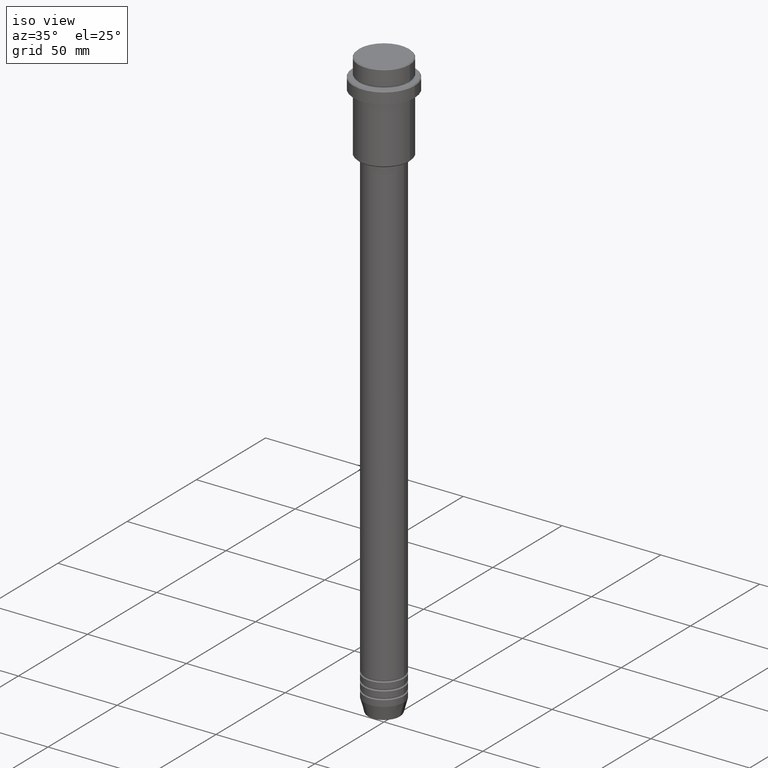
[diagram: clean part render]
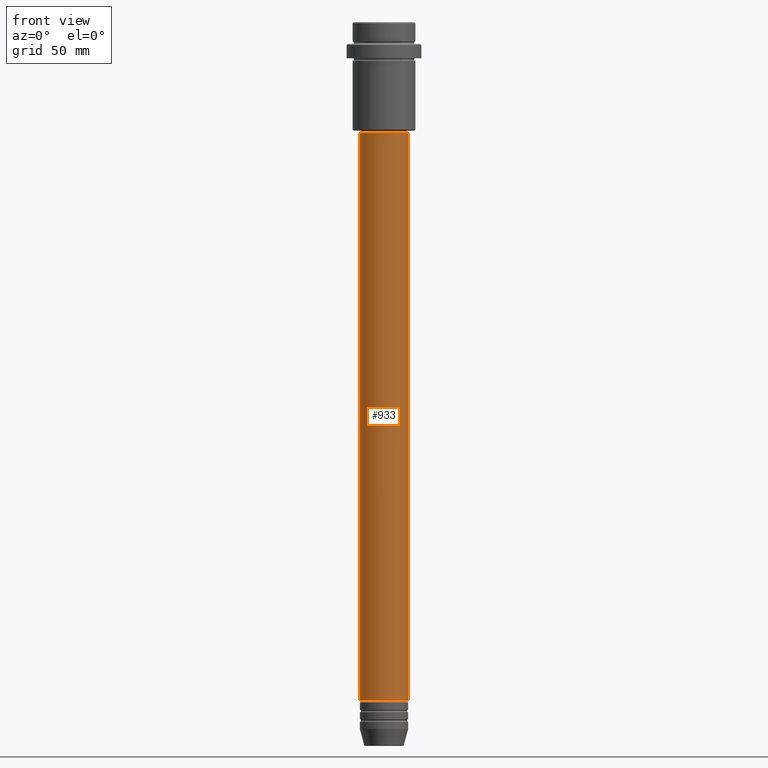
[diagram: tour spotlight — one face highlighted and labeled with its STEP entity id]
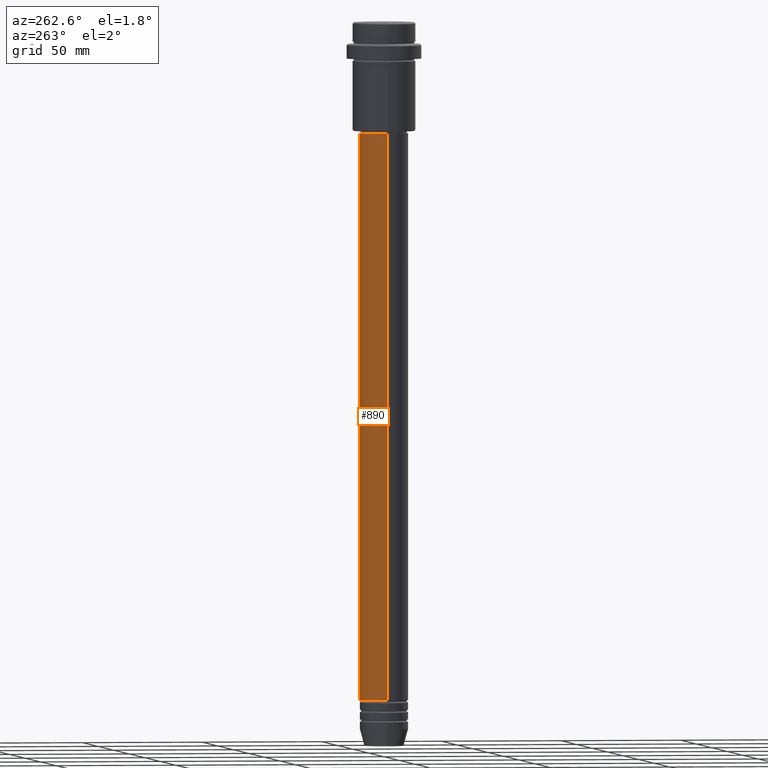
[diagram: tour spotlight — one face highlighted and labeled with its STEP entity id]
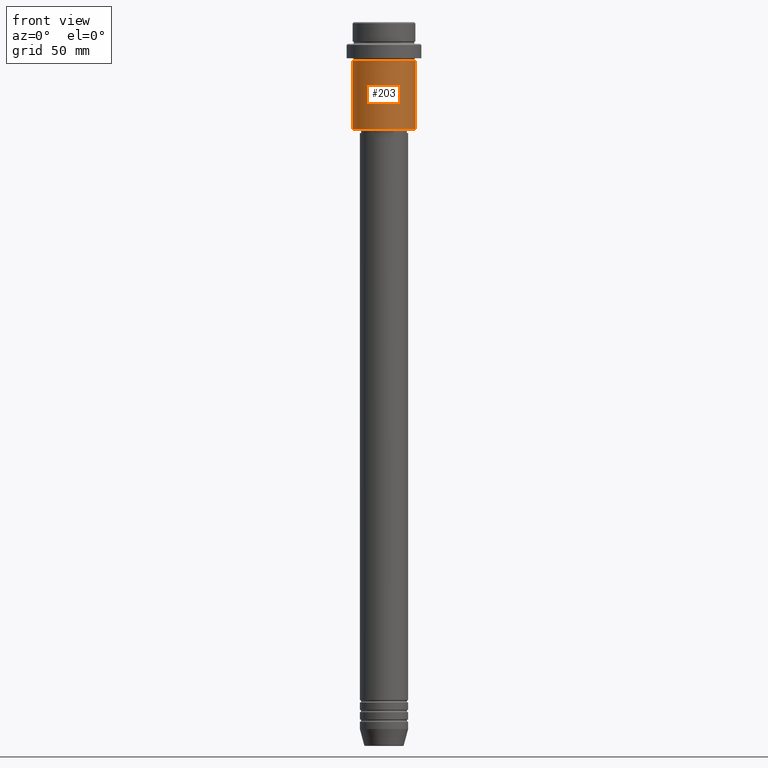
[diagram: tour spotlight — one face highlighted and labeled with its STEP entity id]
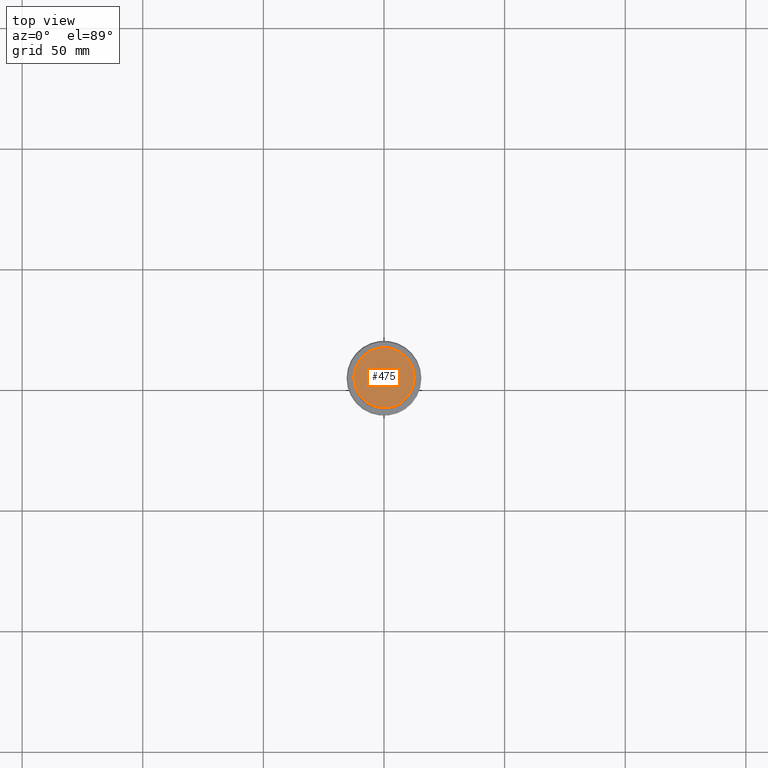
[diagram: tour spotlight — one face highlighted and labeled with its STEP entity id]
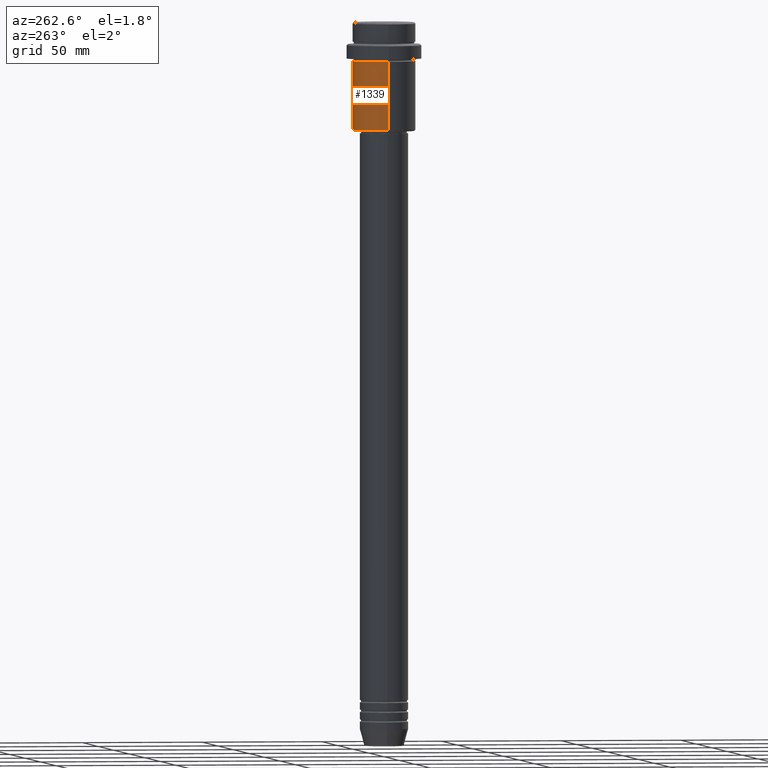
[diagram: tour spotlight — one face highlighted and labeled with its STEP entity id]
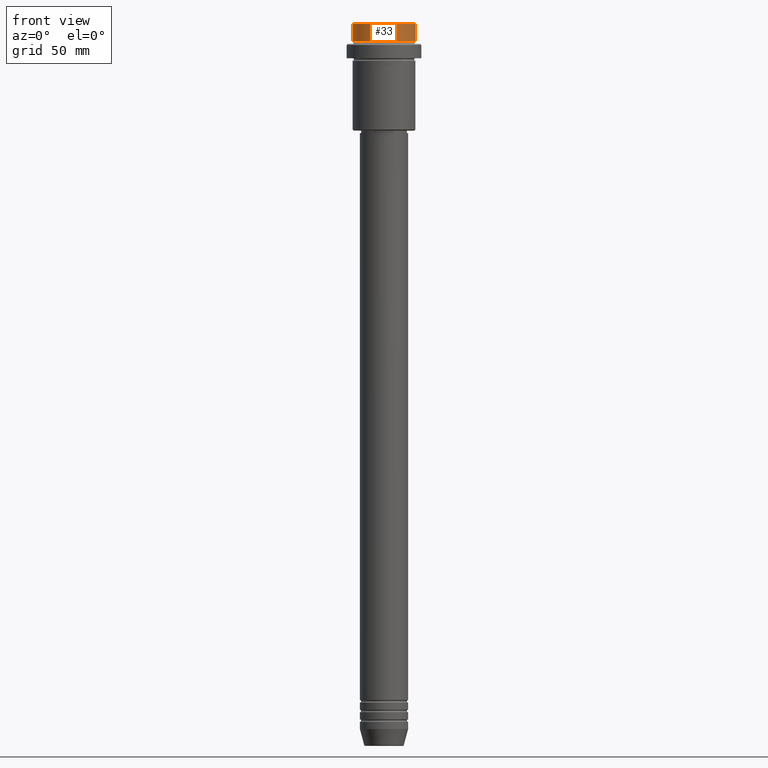
[diagram: tour spotlight — one face highlighted and labeled with its STEP entity id]
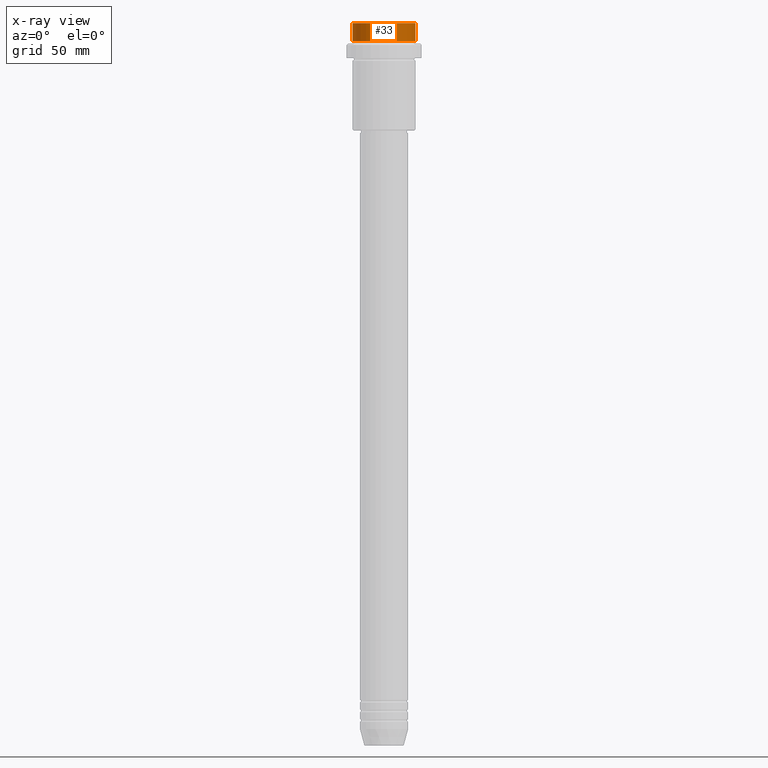
[diagram: x-ray of the same camera — body ghosted, this tour face saturated]
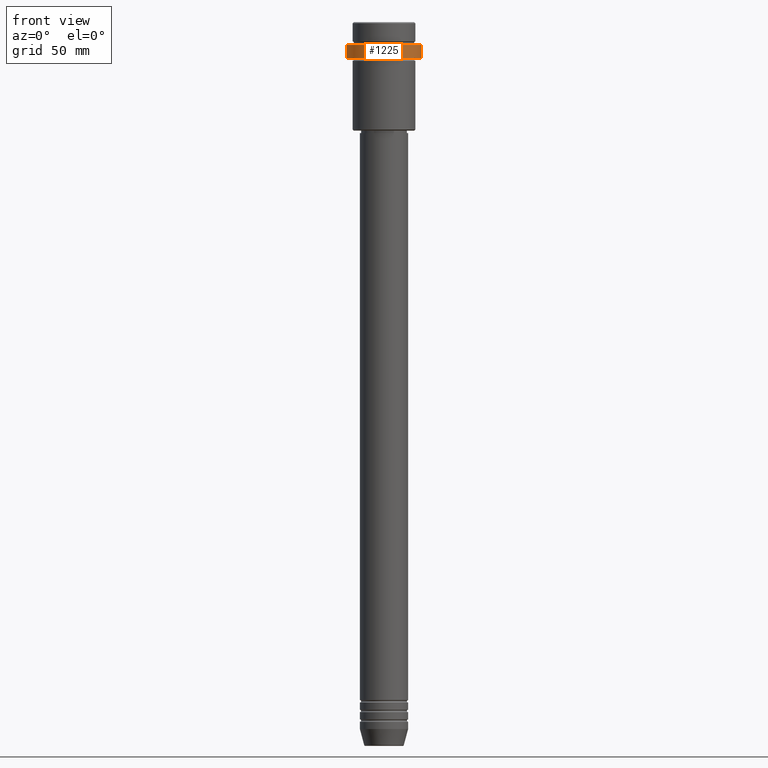
[diagram: tour spotlight — one face highlighted and labeled with its STEP entity id]
A machine part: a face-by-face anatomy tour. The part has 52 B-rep faces; the first image is the clean iso view, then the 7 largest visible faces are spotlighted one at a time (largest first), each with its STEP entity span.

Face 1 — front view, entity #933. In plain terms, the highlighted cylindrical surface (edge-blend (fillet) strip) has radius 10 mm, axis along (-0, -0, 1).
Definition (entity closure, byte-faithful):
#32 = CARTESIAN_POINT ( 'NONE',  ( 0.000000000000000000, 0.000000000000000000, -280.9999999999999432 ) ) ;
#36 = DIRECTION ( 'NONE',  ( -0.000000000000000000, -0.000000000000000000, 1.000000000000000000 ) ) ;
#116 = FACE_OUTER_BOUND ( 'NONE', #548, .T. ) ;
#200 = DIRECTION ( 'NONE',  ( 1.000000000000000000, 0.000000000000000000, 0.000000000000000000 ) ) ;
#348 = CYLINDRICAL_SURFACE ( 'NONE', #1113, 10.00000000000000178 ) ;
#489 = DIRECTION ( 'NONE',  ( 1.000000000000000000, 0.000000000000000000, 0.000000000000000000 ) ) ;
#494 = VECTOR ( 'NONE', #550, 1000.000000000000000 ) ;
#525 = CARTESIAN_POINT ( 'NONE',  ( -10.00000000000000000, 1.224646799147353256E-15, -280.9999999999999432 ) ) ;
#548 = EDGE_LOOP ( 'NONE', ( #722, #1188, #1140, #579 ) ) ;
#550 = DIRECTION ( 'NONE',  ( -0.000000000000000000, -0.000000000000000000, 1.000000000000000000 ) ) ;
#563 = CARTESIAN_POINT ( 'NONE',  ( -10.00000000000000178, 1.224646799147353454E-15, 0.000000000000000000 ) ) ;
#579 = ORIENTED_EDGE ( 'NONE', *, *, #670, .F. ) ;
#611 = VERTEX_POINT ( 'NONE', #525 ) ;
#670 = EDGE_CURVE ( 'NONE', #1387, #712, #1240, .T. ) ;
#712 = VERTEX_POINT ( 'NONE', #899 ) ;
#722 = ORIENTED_EDGE ( 'NONE', *, *, #1375, .F. ) ;
#757 = DIRECTION ( 'NONE',  ( -0.000000000000000000, -0.000000000000000000, 1.000000000000000000 ) ) ;
#763 = AXIS2_PLACEMENT_3D ( 'NONE', #802, #36, #489 ) ;
#802 = CARTESIAN_POINT ( 'NONE',  ( 0.000000000000000000, 0.000000000000000000, -46.00000000000009948 ) ) ;
#856 = CIRCLE ( 'NONE', #880, 10.00000000000000000 ) ;
#861 = CARTESIAN_POINT ( 'NONE',  ( -10.00000000000000178, 1.224646799147353454E-15, -46.00000000000009948 ) ) ;
#868 = CARTESIAN_POINT ( 'NONE',  ( 10.00000000000000000, 0.000000000000000000, -280.9999999999999432 ) ) ;
#880 = AXIS2_PLACEMENT_3D ( 'NONE', #32, #937, #200 ) ;
#899 = CARTESIAN_POINT ( 'NONE',  ( 10.00000000000000178, 0.000000000000000000, -46.00000000000009948 ) ) ;
#933 = ADVANCED_FACE ( 'NONE', ( #116 ), #348, .T. ) ;
#937 = DIRECTION ( 'NONE',  ( -0.000000000000000000, -0.000000000000000000, 1.000000000000000000 ) ) ;
#997 = CARTESIAN_POINT ( 'NONE',  ( 0.000000000000000000, 0.000000000000000000, 0.000000000000000000 ) ) ;
#1046 = EDGE_CURVE ( 'NONE', #1392, #712, #1117, .T. ) ;
#1113 = AXIS2_PLACEMENT_3D ( 'NONE', #997, #757, #1193 ) ;
#1117 = LINE ( 'NONE', #1343, #1243 ) ;
#1140 = ORIENTED_EDGE ( 'NONE', *, *, #1046, .T. ) ;
#1188 = ORIENTED_EDGE ( 'NONE', *, *, #1197, .T. ) ;
#1192 = LINE ( 'NONE', #563, #494 ) ;
#1193 = DIRECTION ( 'NONE',  ( 1.000000000000000000, 0.000000000000000000, 0.000000000000000000 ) ) ;
#1197 = EDGE_CURVE ( 'NONE', #611, #1392, #856, .T. ) ;
#1240 = CIRCLE ( 'NONE', #763, 10.00000000000000178 ) ;
#1243 = VECTOR ( 'NONE', #1327, 1000.000000000000000 ) ;
#1327 = DIRECTION ( 'NONE',  ( -0.000000000000000000, -0.000000000000000000, 1.000000000000000000 ) ) ;
#1343 = CARTESIAN_POINT ( 'NONE',  ( 10.00000000000000178, 0.000000000000000000, 0.000000000000000000 ) ) ;
#1375 = EDGE_CURVE ( 'NONE', #611, #1387, #1192, .T. ) ;
#1387 = VERTEX_POINT ( 'NONE', #861 ) ;
#1392 = VERTEX_POINT ( 'NONE', #868 ) ;

Face 2 — auxiliary view, entity #890. In plain terms, the highlighted cylindrical surface (edge-blend (fillet) strip) has radius 10 mm, axis along (-0, -0, 1).
Definition (entity closure, byte-faithful):
#2 = EDGE_LOOP ( 'NONE', ( #812, #501, #1050, #841 ) ) ;
#55 = AXIS2_PLACEMENT_3D ( 'NONE', #1161, #172, #1048 ) ;
#172 = DIRECTION ( 'NONE',  ( -0.000000000000000000, -0.000000000000000000, 1.000000000000000000 ) ) ;
#322 = CIRCLE ( 'NONE', #1409, 10.00000000000000178 ) ;
#494 = VECTOR ( 'NONE', #550, 1000.000000000000000 ) ;
#501 = ORIENTED_EDGE ( 'NONE', *, *, #1375, .T. ) ;
#502 = CARTESIAN_POINT ( 'NONE',  ( 0.000000000000000000, 0.000000000000000000, -46.00000000000009948 ) ) ;
#525 = CARTESIAN_POINT ( 'NONE',  ( -10.00000000000000000, 1.224646799147353256E-15, -280.9999999999999432 ) ) ;
#550 = DIRECTION ( 'NONE',  ( -0.000000000000000000, -0.000000000000000000, 1.000000000000000000 ) ) ;
#563 = CARTESIAN_POINT ( 'NONE',  ( -10.00000000000000178, 1.224646799147353454E-15, 0.000000000000000000 ) ) ;
#611 = VERTEX_POINT ( 'NONE', #525 ) ;
#690 = EDGE_CURVE ( 'NONE', #1392, #611, #1239, .T. ) ;
#712 = VERTEX_POINT ( 'NONE', #899 ) ;
#725 = DIRECTION ( 'NONE',  ( 1.000000000000000000, 0.000000000000000000, 0.000000000000000000 ) ) ;
#744 = AXIS2_PLACEMENT_3D ( 'NONE', #1145, #1360, #1250 ) ;
#812 = ORIENTED_EDGE ( 'NONE', *, *, #690, .T. ) ;
#841 = ORIENTED_EDGE ( 'NONE', *, *, #1046, .F. ) ;
#861 = CARTESIAN_POINT ( 'NONE',  ( -10.00000000000000178, 1.224646799147353454E-15, -46.00000000000009948 ) ) ;
#868 = CARTESIAN_POINT ( 'NONE',  ( 10.00000000000000000, 0.000000000000000000, -280.9999999999999432 ) ) ;
#890 = ADVANCED_FACE ( 'NONE', ( #934 ), #1367, .T. ) ;
#899 = CARTESIAN_POINT ( 'NONE',  ( 10.00000000000000178, 0.000000000000000000, -46.00000000000009948 ) ) ;
#934 = FACE_OUTER_BOUND ( 'NONE', #2, .T. ) ;
#1046 = EDGE_CURVE ( 'NONE', #1392, #712, #1117, .T. ) ;
#1048 = DIRECTION ( 'NONE',  ( 1.000000000000000000, 0.000000000000000000, 0.000000000000000000 ) ) ;
#1050 = ORIENTED_EDGE ( 'NONE', *, *, #1233, .F. ) ;
#1117 = LINE ( 'NONE', #1343, #1243 ) ;
#1145 = CARTESIAN_POINT ( 'NONE',  ( 0.000000000000000000, 0.000000000000000000, -280.9999999999999432 ) ) ;
#1161 = CARTESIAN_POINT ( 'NONE',  ( 0.000000000000000000, 0.000000000000000000, 0.000000000000000000 ) ) ;
#1192 = LINE ( 'NONE', #563, #494 ) ;
#1233 = EDGE_CURVE ( 'NONE', #712, #1387, #322, .T. ) ;
#1239 = CIRCLE ( 'NONE', #744, 10.00000000000000000 ) ;
#1243 = VECTOR ( 'NONE', #1327, 1000.000000000000000 ) ;
#1250 = DIRECTION ( 'NONE',  ( 1.000000000000000000, 0.000000000000000000, 0.000000000000000000 ) ) ;
#1264 = DIRECTION ( 'NONE',  ( -0.000000000000000000, -0.000000000000000000, 1.000000000000000000 ) ) ;
#1327 = DIRECTION ( 'NONE',  ( -0.000000000000000000, -0.000000000000000000, 1.000000000000000000 ) ) ;
#1343 = CARTESIAN_POINT ( 'NONE',  ( 10.00000000000000178, 0.000000000000000000, 0.000000000000000000 ) ) ;
#1360 = DIRECTION ( 'NONE',  ( -0.000000000000000000, -0.000000000000000000, 1.000000000000000000 ) ) ;
#1367 = CYLINDRICAL_SURFACE ( 'NONE', #55, 10.00000000000000178 ) ;
#1375 = EDGE_CURVE ( 'NONE', #611, #1387, #1192, .T. ) ;
#1387 = VERTEX_POINT ( 'NONE', #861 ) ;
#1392 = VERTEX_POINT ( 'NONE', #868 ) ;
#1409 = AXIS2_PLACEMENT_3D ( 'NONE', #502, #1264, #725 ) ;

Face 3 — front view, entity #203. In plain terms, the highlighted cylindrical surface (edge-blend (fillet) strip) has radius 13 mm, axis along (-0, -0, 1).
Definition (entity closure, byte-faithful):
#5 = CIRCLE ( 'NONE', #740, 13.00000000000000000 ) ;
#6 = DIRECTION ( 'NONE',  ( -0.000000000000000000, -0.000000000000000000, 1.000000000000000000 ) ) ;
#22 = CYLINDRICAL_SURFACE ( 'NONE', #967, 13.00000000000000000 ) ;
#24 = CARTESIAN_POINT ( 'NONE',  ( -13.00000000000000000, 1.592040838891559095E-15, 0.000000000000000000 ) ) ;
#25 = EDGE_CURVE ( 'NONE', #117, #486, #1382, .T. ) ;
#31 = VECTOR ( 'NONE', #773, 1000.000000000000000 ) ;
#39 = EDGE_CURVE ( 'NONE', #486, #980, #5, .T. ) ;
#74 = EDGE_CURVE ( 'NONE', #747, #980, #224, .T. ) ;
#88 = CARTESIAN_POINT ( 'NONE',  ( -13.00000000000000000, 1.592040838891559095E-15, -16.00000000000000000 ) ) ;
#92 = DIRECTION ( 'NONE',  ( -1.000000000000000000, 0.000000000000000000, 0.000000000000000000 ) ) ;
#114 = CARTESIAN_POINT ( 'NONE',  ( 13.00000000000000000, 0.000000000000000000, 0.000000000000000000 ) ) ;
#117 = VERTEX_POINT ( 'NONE', #549 ) ;
#203 = ADVANCED_FACE ( 'NONE', ( #355 ), #22, .T. ) ;
#224 = LINE ( 'NONE', #114, #1326 ) ;
#355 = FACE_OUTER_BOUND ( 'NONE', #1292, .T. ) ;
#434 = CARTESIAN_POINT ( 'NONE',  ( 0.000000000000000000, 0.000000000000000000, -16.00000000000000000 ) ) ;
#440 = DIRECTION ( 'NONE',  ( -0.000000000000000000, -0.000000000000000000, 1.000000000000000000 ) ) ;
#442 = ORIENTED_EDGE ( 'NONE', *, *, #74, .T. ) ;
#465 = CARTESIAN_POINT ( 'NONE',  ( 13.00000000000000000, 0.000000000000000000, -44.50000000000002842 ) ) ;
#486 = VERTEX_POINT ( 'NONE', #88 ) ;
#510 = DIRECTION ( 'NONE',  ( -0.000000000000000000, -0.000000000000000000, 1.000000000000000000 ) ) ;
#549 = CARTESIAN_POINT ( 'NONE',  ( -13.00000000000000000, 1.592040838891559095E-15, -44.50000000000002842 ) ) ;
#631 = AXIS2_PLACEMENT_3D ( 'NONE', #751, #510, #92 ) ;
#693 = DIRECTION ( 'NONE',  ( -0.000000000000000000, -0.000000000000000000, 1.000000000000000000 ) ) ;
#740 = AXIS2_PLACEMENT_3D ( 'NONE', #434, #6, #881 ) ;
#746 = ORIENTED_EDGE ( 'NONE', *, *, #851, .T. ) ;
#747 = VERTEX_POINT ( 'NONE', #465 ) ;
#751 = CARTESIAN_POINT ( 'NONE',  ( 0.000000000000000000, 0.000000000000000000, -44.50000000000002842 ) ) ;
#773 = DIRECTION ( 'NONE',  ( -0.000000000000000000, -0.000000000000000000, 1.000000000000000000 ) ) ;
#786 = CARTESIAN_POINT ( 'NONE',  ( 0.000000000000000000, 0.000000000000000000, 0.000000000000000000 ) ) ;
#809 = ORIENTED_EDGE ( 'NONE', *, *, #25, .F. ) ;
#823 = ORIENTED_EDGE ( 'NONE', *, *, #39, .F. ) ;
#851 = EDGE_CURVE ( 'NONE', #117, #747, #1242, .T. ) ;
#881 = DIRECTION ( 'NONE',  ( 1.000000000000000000, 0.000000000000000000, 0.000000000000000000 ) ) ;
#967 = AXIS2_PLACEMENT_3D ( 'NONE', #786, #693, #1222 ) ;
#980 = VERTEX_POINT ( 'NONE', #1199 ) ;
#1199 = CARTESIAN_POINT ( 'NONE',  ( 13.00000000000000000, 0.000000000000000000, -16.00000000000000000 ) ) ;
#1222 = DIRECTION ( 'NONE',  ( 1.000000000000000000, 0.000000000000000000, 0.000000000000000000 ) ) ;
#1242 = CIRCLE ( 'NONE', #631, 13.00000000000000000 ) ;
#1292 = EDGE_LOOP ( 'NONE', ( #809, #746, #442, #823 ) ) ;
#1326 = VECTOR ( 'NONE', #440, 1000.000000000000000 ) ;
#1382 = LINE ( 'NONE', #24, #31 ) ;

Face 4 — top view, entity #475. In plain terms, the highlighted planar face has unit normal (0, -0, 1).
Definition (entity closure, byte-faithful):
#154 = VERTEX_POINT ( 'NONE', #198 ) ;
#198 = CARTESIAN_POINT ( 'NONE',  ( -12.49999999999995737, 0.000000000000000000, 0.000000000000000000 ) ) ;
#205 = CARTESIAN_POINT ( 'NONE',  ( 0.000000000000000000, 0.000000000000000000, 0.000000000000000000 ) ) ;
#267 = CIRCLE ( 'NONE', #401, 12.49999999999995737 ) ;
#311 = DIRECTION ( 'NONE',  ( -0.000000000000000000, -0.000000000000000000, 1.000000000000000000 ) ) ;
#320 = EDGE_LOOP ( 'NONE', ( #827, #1416 ) ) ;
#349 = DIRECTION ( 'NONE',  ( 1.000000000000000000, 0.000000000000000000, 0.000000000000000000 ) ) ;
#401 = AXIS2_PLACEMENT_3D ( 'NONE', #443, #990, #770 ) ;
#424 = AXIS2_PLACEMENT_3D ( 'NONE', #205, #311, #669 ) ;
#443 = CARTESIAN_POINT ( 'NONE',  ( 0.000000000000000000, 0.000000000000000000, 0.000000000000000000 ) ) ;
#475 = ADVANCED_FACE ( 'NONE', ( #1206 ), #533, .T. ) ;
#526 = EDGE_CURVE ( 'NONE', #801, #154, #1033, .T. ) ;
#533 = PLANE ( 'NONE',  #673 ) ;
#556 = EDGE_CURVE ( 'NONE', #154, #801, #267, .T. ) ;
#669 = DIRECTION ( 'NONE',  ( 1.000000000000000000, 0.000000000000000000, 0.000000000000000000 ) ) ;
#673 = AXIS2_PLACEMENT_3D ( 'NONE', #680, #1003, #349 ) ;
#680 = CARTESIAN_POINT ( 'NONE',  ( 0.000000000000000000, 0.000000000000000000, 0.000000000000000000 ) ) ;
#770 = DIRECTION ( 'NONE',  ( 1.000000000000000000, 0.000000000000000000, 0.000000000000000000 ) ) ;
#801 = VERTEX_POINT ( 'NONE', #1287 ) ;
#827 = ORIENTED_EDGE ( 'NONE', *, *, #556, .T. ) ;
#990 = DIRECTION ( 'NONE',  ( -0.000000000000000000, -0.000000000000000000, 1.000000000000000000 ) ) ;
#1003 = DIRECTION ( 'NONE',  ( 0.000000000000000000, -0.000000000000000000, 1.000000000000000000 ) ) ;
#1033 = CIRCLE ( 'NONE', #424, 12.49999999999995737 ) ;
#1206 = FACE_OUTER_BOUND ( 'NONE', #320, .T. ) ;
#1287 = CARTESIAN_POINT ( 'NONE',  ( 12.49999999999995737, 1.561424668912872745E-15, 0.000000000000000000 ) ) ;
#1416 = ORIENTED_EDGE ( 'NONE', *, *, #526, .T. ) ;

Face 5 — auxiliary view, entity #1339. In plain terms, the highlighted cylindrical surface (edge-blend (fillet) strip) has radius 13 mm, axis along (-0, -0, 1).
Definition (entity closure, byte-faithful):
#24 = CARTESIAN_POINT ( 'NONE',  ( -13.00000000000000000, 1.592040838891559095E-15, 0.000000000000000000 ) ) ;
#25 = EDGE_CURVE ( 'NONE', #117, #486, #1382, .T. ) ;
#31 = VECTOR ( 'NONE', #773, 1000.000000000000000 ) ;
#74 = EDGE_CURVE ( 'NONE', #747, #980, #224, .T. ) ;
#88 = CARTESIAN_POINT ( 'NONE',  ( -13.00000000000000000, 1.592040838891559095E-15, -16.00000000000000000 ) ) ;
#114 = CARTESIAN_POINT ( 'NONE',  ( 13.00000000000000000, 0.000000000000000000, 0.000000000000000000 ) ) ;
#117 = VERTEX_POINT ( 'NONE', #549 ) ;
#222 = CIRCLE ( 'NONE', #1334, 13.00000000000000000 ) ;
#224 = LINE ( 'NONE', #114, #1326 ) ;
#242 = DIRECTION ( 'NONE',  ( -0.000000000000000000, -0.000000000000000000, 1.000000000000000000 ) ) ;
#359 = ORIENTED_EDGE ( 'NONE', *, *, #74, .F. ) ;
#372 = ORIENTED_EDGE ( 'NONE', *, *, #393, .T. ) ;
#393 = EDGE_CURVE ( 'NONE', #747, #117, #671, .T. ) ;
#440 = DIRECTION ( 'NONE',  ( -0.000000000000000000, -0.000000000000000000, 1.000000000000000000 ) ) ;
#465 = CARTESIAN_POINT ( 'NONE',  ( 13.00000000000000000, 0.000000000000000000, -44.50000000000002842 ) ) ;
#486 = VERTEX_POINT ( 'NONE', #88 ) ;
#539 = ORIENTED_EDGE ( 'NONE', *, *, #25, .T. ) ;
#543 = CARTESIAN_POINT ( 'NONE',  ( 0.000000000000000000, 0.000000000000000000, 0.000000000000000000 ) ) ;
#549 = CARTESIAN_POINT ( 'NONE',  ( -13.00000000000000000, 1.592040838891559095E-15, -44.50000000000002842 ) ) ;
#617 = DIRECTION ( 'NONE',  ( -1.000000000000000000, 0.000000000000000000, 0.000000000000000000 ) ) ;
#671 = CIRCLE ( 'NONE', #1402, 13.00000000000000000 ) ;
#685 = DIRECTION ( 'NONE',  ( 1.000000000000000000, 0.000000000000000000, 0.000000000000000000 ) ) ;
#729 = DIRECTION ( 'NONE',  ( -0.000000000000000000, -0.000000000000000000, 1.000000000000000000 ) ) ;
#736 = ORIENTED_EDGE ( 'NONE', *, *, #1122, .F. ) ;
#747 = VERTEX_POINT ( 'NONE', #465 ) ;
#756 = FACE_OUTER_BOUND ( 'NONE', #1067, .T. ) ;
#773 = DIRECTION ( 'NONE',  ( -0.000000000000000000, -0.000000000000000000, 1.000000000000000000 ) ) ;
#796 = CARTESIAN_POINT ( 'NONE',  ( 0.000000000000000000, 0.000000000000000000, -16.00000000000000000 ) ) ;
#943 = CARTESIAN_POINT ( 'NONE',  ( 0.000000000000000000, 0.000000000000000000, -44.50000000000002842 ) ) ;
#980 = VERTEX_POINT ( 'NONE', #1199 ) ;
#985 = CYLINDRICAL_SURFACE ( 'NONE', #1309, 13.00000000000000000 ) ;
#1067 = EDGE_LOOP ( 'NONE', ( #372, #539, #736, #359 ) ) ;
#1122 = EDGE_CURVE ( 'NONE', #980, #486, #222, .T. ) ;
#1199 = CARTESIAN_POINT ( 'NONE',  ( 13.00000000000000000, 0.000000000000000000, -16.00000000000000000 ) ) ;
#1208 = DIRECTION ( 'NONE',  ( -0.000000000000000000, -0.000000000000000000, 1.000000000000000000 ) ) ;
#1303 = DIRECTION ( 'NONE',  ( 1.000000000000000000, 0.000000000000000000, 0.000000000000000000 ) ) ;
#1309 = AXIS2_PLACEMENT_3D ( 'NONE', #543, #1208, #1303 ) ;
#1326 = VECTOR ( 'NONE', #440, 1000.000000000000000 ) ;
#1334 = AXIS2_PLACEMENT_3D ( 'NONE', #796, #242, #685 ) ;
#1339 = ADVANCED_FACE ( 'NONE', ( #756 ), #985, .T. ) ;
#1382 = LINE ( 'NONE', #24, #31 ) ;
#1402 = AXIS2_PLACEMENT_3D ( 'NONE', #943, #729, #617 ) ;

Face 6 — front view, entity #33. An x-ray twin of the same camera follows (body ghosted, this face saturated) — the face is partly hidden behind the body. In plain terms, the highlighted cylindrical surface (edge-blend (fillet) strip) has radius 13 mm, axis along (-0, -0, 1).
Definition (entity closure, byte-faithful):
#8 = CIRCLE ( 'NONE', #803, 12.99999999999999822 ) ;
#18 = CARTESIAN_POINT ( 'NONE',  ( 12.99999999999999822, 0.000000000000000000, 0.000000000000000000 ) ) ;
#33 = ADVANCED_FACE ( 'NONE', ( #1277 ), #95, .T. ) ;
#76 = AXIS2_PLACEMENT_3D ( 'NONE', #755, #345, #217 ) ;
#91 = VERTEX_POINT ( 'NONE', #108 ) ;
#95 = CYLINDRICAL_SURFACE ( 'NONE', #76, 12.99999999999999822 ) ;
#97 = CARTESIAN_POINT ( 'NONE',  ( 12.99999999999999822, 0.000000000000000000, -7.999999999999998224 ) ) ;
#108 = CARTESIAN_POINT ( 'NONE',  ( 12.99999999999999822, 0.000000000000000000, -0.5000000000000315303 ) ) ;
#118 = CARTESIAN_POINT ( 'NONE',  ( -12.99999999999999822, 1.592040838891558898E-15, 0.000000000000000000 ) ) ;
#169 = EDGE_CURVE ( 'NONE', #1316, #925, #8, .T. ) ;
#174 = ORIENTED_EDGE ( 'NONE', *, *, #169, .T. ) ;
#207 = LINE ( 'NONE', #18, #969 ) ;
#217 = DIRECTION ( 'NONE',  ( 1.000000000000000000, 0.000000000000000000, 0.000000000000000000 ) ) ;
#258 = DIRECTION ( 'NONE',  ( 1.000000000000000000, 0.000000000000000000, 0.000000000000000000 ) ) ;
#289 = EDGE_LOOP ( 'NONE', ( #1253, #174, #1162, #734 ) ) ;
#345 = DIRECTION ( 'NONE',  ( -0.000000000000000000, -0.000000000000000000, 1.000000000000000000 ) ) ;
#378 = CIRCLE ( 'NONE', #718, 12.99999999999999822 ) ;
#527 = DIRECTION ( 'NONE',  ( 1.000000000000000000, 0.000000000000000000, 0.000000000000000000 ) ) ;
#544 = EDGE_CURVE ( 'NONE', #1316, #935, #1077, .T. ) ;
#588 = DIRECTION ( 'NONE',  ( 0.000000000000000000, 0.000000000000000000, -1.000000000000000000 ) ) ;
#614 = EDGE_CURVE ( 'NONE', #91, #935, #378, .T. ) ;
#718 = AXIS2_PLACEMENT_3D ( 'NONE', #908, #588, #258 ) ;
#734 = ORIENTED_EDGE ( 'NONE', *, *, #614, .T. ) ;
#755 = CARTESIAN_POINT ( 'NONE',  ( 0.000000000000000000, 0.000000000000000000, 0.000000000000000000 ) ) ;
#766 = DIRECTION ( 'NONE',  ( -0.000000000000000000, -0.000000000000000000, 1.000000000000000000 ) ) ;
#785 = VECTOR ( 'NONE', #1111, 1000.000000000000000 ) ;
#803 = AXIS2_PLACEMENT_3D ( 'NONE', #1203, #766, #527 ) ;
#839 = CARTESIAN_POINT ( 'NONE',  ( -12.99999999999999822, 1.592040838891558898E-15, -7.999999999999998224 ) ) ;
#908 = CARTESIAN_POINT ( 'NONE',  ( 0.000000000000000000, 0.000000000000000000, -0.5000000000000315303 ) ) ;
#925 = VERTEX_POINT ( 'NONE', #97 ) ;
#935 = VERTEX_POINT ( 'NONE', #1305 ) ;
#969 = VECTOR ( 'NONE', #1080, 1000.000000000000000 ) ;
#1077 = LINE ( 'NONE', #118, #785 ) ;
#1080 = DIRECTION ( 'NONE',  ( -0.000000000000000000, -0.000000000000000000, 1.000000000000000000 ) ) ;
#1111 = DIRECTION ( 'NONE',  ( -0.000000000000000000, -0.000000000000000000, 1.000000000000000000 ) ) ;
#1162 = ORIENTED_EDGE ( 'NONE', *, *, #1368, .T. ) ;
#1203 = CARTESIAN_POINT ( 'NONE',  ( 0.000000000000000000, 0.000000000000000000, -7.999999999999998224 ) ) ;
#1253 = ORIENTED_EDGE ( 'NONE', *, *, #544, .F. ) ;
#1277 = FACE_OUTER_BOUND ( 'NONE', #289, .T. ) ;
#1305 = CARTESIAN_POINT ( 'NONE',  ( -12.99999999999999822, 1.592040838891558898E-15, -0.5000000000000315303 ) ) ;
#1316 = VERTEX_POINT ( 'NONE', #839 ) ;
#1368 = EDGE_CURVE ( 'NONE', #925, #91, #207, .T. ) ;

Face 7 — front view, entity #1225. In plain terms, the highlighted cylindrical surface (partial cylindrical patch) has radius 15.5 mm, axis along (-0, -0, 1).
Definition (entity closure, byte-faithful):
#12 = CIRCLE ( 'NONE', #1035, 15.50000000000000000 ) ;
#71 = DIRECTION ( 'NONE',  ( 1.000000000000000000, 0.000000000000000000, 0.000000000000000000 ) ) ;
#72 = FACE_OUTER_BOUND ( 'NONE', #896, .T. ) ;
#82 = ORIENTED_EDGE ( 'NONE', *, *, #375, .T. ) ;
#96 = LINE ( 'NONE', #649, #559 ) ;
#177 = CARTESIAN_POINT ( 'NONE',  ( 0.000000000000000000, 0.000000000000000000, -9.500000000000039080 ) ) ;
#180 = ORIENTED_EDGE ( 'NONE', *, *, #926, .T. ) ;
#185 = VERTEX_POINT ( 'NONE', #1213 ) ;
#243 = VECTOR ( 'NONE', #545, 1000.000000000000000 ) ;
#245 = AXIS2_PLACEMENT_3D ( 'NONE', #417, #1271, #1054 ) ;
#301 = CARTESIAN_POINT ( 'NONE',  ( -15.50000000000000000, 1.898202538678397557E-15, -9.500000000000039080 ) ) ;
#332 = DIRECTION ( 'NONE',  ( -0.000000000000000000, -0.000000000000000000, 1.000000000000000000 ) ) ;
#353 = ORIENTED_EDGE ( 'NONE', *, *, #1407, .F. ) ;
#375 = EDGE_CURVE ( 'NONE', #185, #769, #762, .T. ) ;
#409 = VERTEX_POINT ( 'NONE', #702 ) ;
#417 = CARTESIAN_POINT ( 'NONE',  ( 0.000000000000000000, 0.000000000000000000, 0.000000000000000000 ) ) ;
#452 = LINE ( 'NONE', #1215, #243 ) ;
#499 = DIRECTION ( 'NONE',  ( 0.000000000000000000, 0.000000000000000000, -1.000000000000000000 ) ) ;
#523 = DIRECTION ( 'NONE',  ( 1.000000000000000000, 0.000000000000000000, 0.000000000000000000 ) ) ;
#545 = DIRECTION ( 'NONE',  ( -0.000000000000000000, -0.000000000000000000, 1.000000000000000000 ) ) ;
#559 = VECTOR ( 'NONE', #332, 1000.000000000000000 ) ;
#610 = DIRECTION ( 'NONE',  ( -0.000000000000000000, -0.000000000000000000, 1.000000000000000000 ) ) ;
#649 = CARTESIAN_POINT ( 'NONE',  ( -15.50000000000000000, 1.898202538678397557E-15, 0.000000000000000000 ) ) ;
#702 = CARTESIAN_POINT ( 'NONE',  ( -15.50000000000000000, 1.898202538678397557E-15, -15.00000000000000000 ) ) ;
#753 = ORIENTED_EDGE ( 'NONE', *, *, #870, .T. ) ;
#762 = CIRCLE ( 'NONE', #1109, 15.50000000000000000 ) ;
#769 = VERTEX_POINT ( 'NONE', #301 ) ;
#870 = EDGE_CURVE ( 'NONE', #409, #1083, #12, .T. ) ;
#896 = EDGE_LOOP ( 'NONE', ( #353, #753, #180, #82 ) ) ;
#897 = CARTESIAN_POINT ( 'NONE',  ( 15.50000000000000000, 0.000000000000000000, -15.00000000000000000 ) ) ;
#926 = EDGE_CURVE ( 'NONE', #1083, #185, #452, .T. ) ;
#932 = CYLINDRICAL_SURFACE ( 'NONE', #245, 15.50000000000000000 ) ;
#1035 = AXIS2_PLACEMENT_3D ( 'NONE', #1273, #610, #523 ) ;
#1054 = DIRECTION ( 'NONE',  ( 1.000000000000000000, 0.000000000000000000, 0.000000000000000000 ) ) ;
#1083 = VERTEX_POINT ( 'NONE', #897 ) ;
#1109 = AXIS2_PLACEMENT_3D ( 'NONE', #177, #499, #71 ) ;
#1213 = CARTESIAN_POINT ( 'NONE',  ( 15.50000000000000000, 0.000000000000000000, -9.500000000000039080 ) ) ;
#1215 = CARTESIAN_POINT ( 'NONE',  ( 15.50000000000000000, 0.000000000000000000, 0.000000000000000000 ) ) ;
#1225 = ADVANCED_FACE ( 'NONE', ( #72 ), #932, .T. ) ;
#1271 = DIRECTION ( 'NONE',  ( -0.000000000000000000, -0.000000000000000000, 1.000000000000000000 ) ) ;
#1273 = CARTESIAN_POINT ( 'NONE',  ( 0.000000000000000000, 0.000000000000000000, -15.00000000000000000 ) ) ;
#1407 = EDGE_CURVE ( 'NONE', #409, #769, #96, .T. ) ;